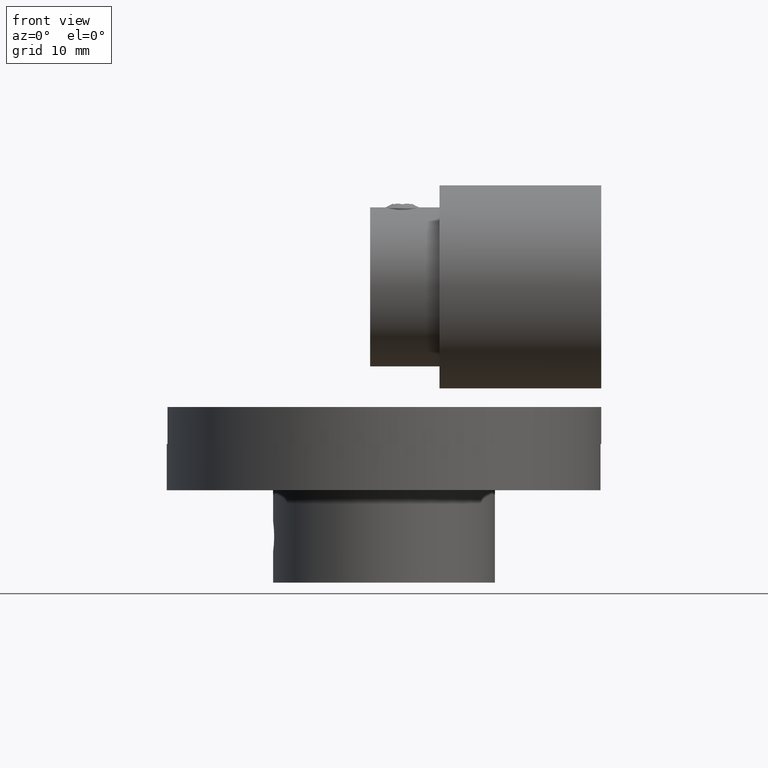
[diagram: clean part render]
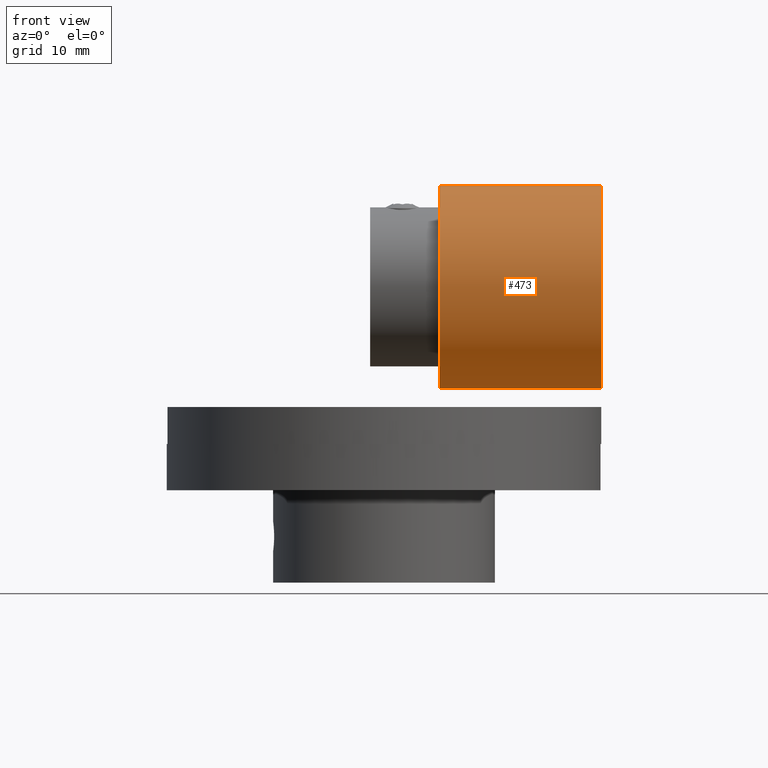
[diagram: same view with one face highlighted and labeled with its STEP entity id]
A machine part, front view. The second image highlights one B-rep face of the part: STEP entity #473.
In plain terms, the highlighted cylindrical surface (bore or boss wall) has radius 11 mm, axis along (-1, -0, 0).
Its self-contained STEP definition (entity closure, byte-faithful):
#473 = ADVANCED_FACE( '', ( #602, #603 ), #604, .T. );
#602 = FACE_OUTER_BOUND( '', #786, .T. );
#603 = FACE_OUTER_BOUND( '', #787, .T. );
#604 = CYLINDRICAL_SURFACE( '', #788, 11.0000000000000 );
#786 = EDGE_LOOP( '', ( #1010 ) );
#787 = EDGE_LOOP( '', ( #1011 ) );
#788 = AXIS2_PLACEMENT_3D( '', #1012, #1013, #1014 );
#1010 = ORIENTED_EDGE( '', *, *, #1358, .T. );
#1011 = ORIENTED_EDGE( '', *, *, #1359, .F. );
#1012 = CARTESIAN_POINT( '', ( 6.00000000000000, 0.000000000000000, 40.0000000000000 ) );
#1013 = DIRECTION( '', ( -1.00000000000000, -0.000000000000000, 0.000000000000000 ) );
#1014 = DIRECTION( '', ( 0.000000000000000, 1.00000000000000, 0.000000000000000 ) );
#1358 = EDGE_CURVE( '', #1498, #1498, #1499, .T. );
#1359 = EDGE_CURVE( '', #1500, #1500, #1501, .T. );
#1498 = VERTEX_POINT( '', #2126 );
#1499 = CIRCLE( '', #2127, 11.0000000000000 );
#1500 = VERTEX_POINT( '', #2128 );
#1501 = CIRCLE( '', #2129, 11.0000000000000 );
#2126 = CARTESIAN_POINT( '', ( 6.00000000000000, 11.0000000000000, 40.0000000000000 ) );
#2127 = AXIS2_PLACEMENT_3D( '', #2494, #2495, #2496 );
#2128 = CARTESIAN_POINT( '', ( 23.5000000000000, 11.0000000000000, 40.0000000000000 ) );
#2129 = AXIS2_PLACEMENT_3D( '', #2497, #2498, #2499 );
#2494 = CARTESIAN_POINT( '', ( 6.00000000000000, 0.000000000000000, 40.0000000000000 ) );
#2495 = DIRECTION( '', ( 1.00000000000000, 0.000000000000000, 0.000000000000000 ) );
#2496 = DIRECTION( '', ( 0.000000000000000, 1.00000000000000, 0.000000000000000 ) );
#2497 = CARTESIAN_POINT( '', ( 23.5000000000000, 0.000000000000000, 40.0000000000000 ) );
#2498 = DIRECTION( '', ( 1.00000000000000, 0.000000000000000, 0.000000000000000 ) );
#2499 = DIRECTION( '', ( 0.000000000000000, 1.00000000000000, 0.000000000000000 ) );